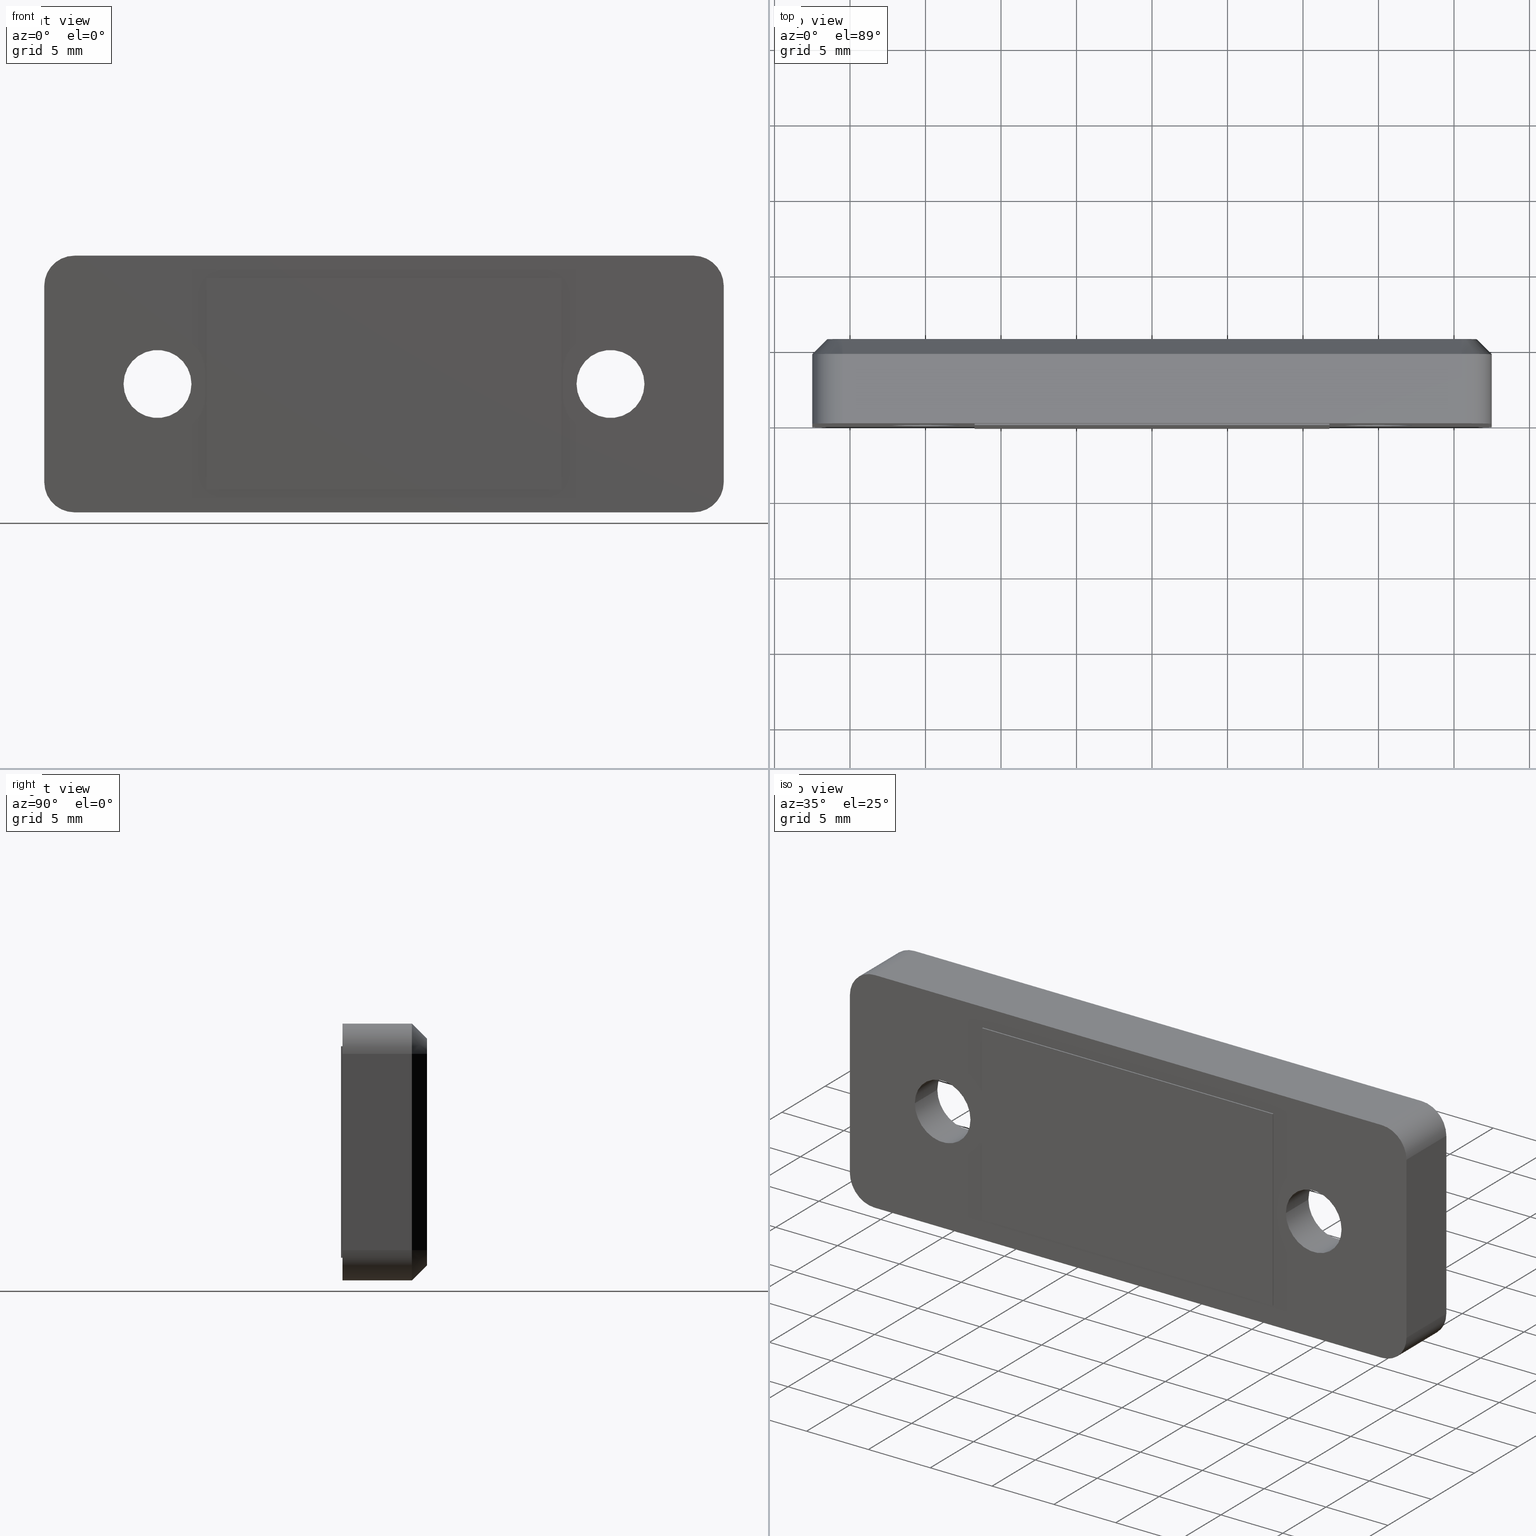
[diagram: canonical four-view strip — front | top / right | iso, engineering-drawing reading convention]
A machine part, canonical four-view strip (front | top / right | iso — engineering-drawing reading convention). The complete STEP part file that produces these views, byte-faithful:
ISO-10303-21;
HEADER;
/* Generated by software containing ST-Developer
 * from STEP Tools, Inc. (www.steptools.com) 
 */

FILE_DESCRIPTION(
/* description */ (''),
/* implementation_level */ '2;1');

FILE_NAME(
/* name */ '\\\\SYNOLOGYNAS\\web\\db2\\B-MP30\\\X2\B3C4BA74\X0\\\B-MP3
0.stp',
/* time_stamp */ '2024-09-25T18:44:56+09:00',
/* author */ ('user'),
/* organization */ (''),
/* preprocessor_version */ 'ST-DEVELOPER v15.6',
/* originating_system */ 'Autodesk Inventor 2015',
/* authorisation */ '');

FILE_SCHEMA (('AUTOMOTIVE_DESIGN { 1 0 10303 214 3 1 1 }'));
ENDSEC;

DATA;
#10=MECHANICAL_DESIGN_GEOMETRIC_PRESENTATION_REPRESENTATION('',(#16),#840);
#11=DIMENSIONAL_EXPONENTS(0.,0.,0.,0.,0.,0.,0.);
#12=(
CONVERSION_BASED_UNIT('degree',#13)
NAMED_UNIT(#11)
PLANE_ANGLE_UNIT()
);
#13=PLANE_ANGLE_MEASURE_WITH_UNIT(PLANE_ANGLE_MEASURE(0.01745329252),#843);
#14=SHAPE_REPRESENTATION_RELATIONSHIP('SRR','None',#846,#15);
#15=ADVANCED_BREP_SHAPE_REPRESENTATION($,(#17),#839);
#16=STYLED_ITEM('',(#856),#17);
#17=MANIFOLD_SOLID_BREP('\X2\BCF8CCB4\X0\1',#498);
#18=CYLINDRICAL_SURFACE('',#525,2.);
#19=CYLINDRICAL_SURFACE('',#528,2.);
#20=CYLINDRICAL_SURFACE('',#531,2.);
#21=CYLINDRICAL_SURFACE('',#534,2.);
#22=CYLINDRICAL_SURFACE('',#539,2.25);
#23=CYLINDRICAL_SURFACE('',#546,4.8);
#24=CYLINDRICAL_SURFACE('',#549,4.8);
#25=CYLINDRICAL_SURFACE('',#552,2.25);
#26=CONICAL_SURFACE('',#512,1.499999999779,0.785398163397448);
#27=CONICAL_SURFACE('',#515,1.499999999779,0.785398163397448);
#28=CONICAL_SURFACE('',#518,1.499999999779,0.785398163397448);
#29=CONICAL_SURFACE('',#521,1.499999999779,0.785398163397448);
#30=CONICAL_SURFACE('',#548,4.899999999123,0.785398163397448);
#31=CONICAL_SURFACE('',#551,4.899999999123,0.785398163397448);
#32=FACE_BOUND('',#104,.T.);
#33=FACE_BOUND('',#105,.T.);
#34=FACE_BOUND('',#123,.T.);
#35=FACE_BOUND('',#124,.T.);
#36=FACE_BOUND('',#125,.T.);
#37=FACE_BOUND('',#127,.T.);
#38=FACE_BOUND('',#129,.T.);
#39=FACE_BOUND('',#131,.T.);
#40=FACE_BOUND('',#133,.T.);
#41=FACE_BOUND('',#135,.T.);
#42=FACE_BOUND('',#137,.T.);
#43=FACE_BOUND('',#139,.T.);
#44=FACE_BOUND('',#141,.T.);
#45=CIRCLE('',#506,1.);
#46=CIRCLE('',#507,1.);
#47=CIRCLE('',#508,1.);
#48=CIRCLE('',#509,1.);
#49=CIRCLE('',#510,5.);
#50=CIRCLE('',#511,5.);
#51=CIRCLE('',#513,2.);
#52=CIRCLE('',#516,2.);
#53=CIRCLE('',#519,2.);
#54=CIRCLE('',#522,2.);
#55=CIRCLE('',#526,2.);
#56=CIRCLE('',#529,2.);
#57=CIRCLE('',#532,2.);
#58=CIRCLE('',#535,2.);
#59=CIRCLE('',#537,2.25);
#60=CIRCLE('',#538,2.25);
#61=CIRCLE('',#540,2.25);
#62=CIRCLE('',#542,4.8);
#63=CIRCLE('',#544,4.8);
#64=CIRCLE('',#545,2.25);
#65=CIRCLE('',#547,4.8);
#66=CIRCLE('',#550,4.8);
#67=FACE_OUTER_BOUND('',#98,.T.);
#68=FACE_OUTER_BOUND('',#99,.T.);
#69=FACE_OUTER_BOUND('',#100,.T.);
#70=FACE_OUTER_BOUND('',#101,.T.);
#71=FACE_OUTER_BOUND('',#102,.T.);
#72=FACE_OUTER_BOUND('',#103,.T.);
#73=FACE_OUTER_BOUND('',#106,.T.);
#74=FACE_OUTER_BOUND('',#107,.T.);
#75=FACE_OUTER_BOUND('',#108,.T.);
#76=FACE_OUTER_BOUND('',#109,.T.);
#77=FACE_OUTER_BOUND('',#110,.T.);
#78=FACE_OUTER_BOUND('',#111,.T.);
#79=FACE_OUTER_BOUND('',#112,.T.);
#80=FACE_OUTER_BOUND('',#113,.T.);
#81=FACE_OUTER_BOUND('',#114,.T.);
#82=FACE_OUTER_BOUND('',#115,.T.);
#83=FACE_OUTER_BOUND('',#116,.T.);
#84=FACE_OUTER_BOUND('',#117,.T.);
#85=FACE_OUTER_BOUND('',#118,.T.);
#86=FACE_OUTER_BOUND('',#119,.T.);
#87=FACE_OUTER_BOUND('',#120,.T.);
#88=FACE_OUTER_BOUND('',#121,.T.);
#89=FACE_OUTER_BOUND('',#122,.T.);
#90=FACE_OUTER_BOUND('',#126,.T.);
#91=FACE_OUTER_BOUND('',#128,.T.);
#92=FACE_OUTER_BOUND('',#130,.T.);
#93=FACE_OUTER_BOUND('',#132,.T.);
#94=FACE_OUTER_BOUND('',#134,.T.);
#95=FACE_OUTER_BOUND('',#136,.T.);
#96=FACE_OUTER_BOUND('',#138,.T.);
#97=FACE_OUTER_BOUND('',#140,.T.);
#98=EDGE_LOOP('',(#326,#327,#328,#329));
#99=EDGE_LOOP('',(#330,#331,#332,#333));
#100=EDGE_LOOP('',(#334,#335,#336,#337));
#101=EDGE_LOOP('',(#338,#339,#340,#341));
#102=EDGE_LOOP('',(#342,#343,#344,#345));
#103=EDGE_LOOP('',(#346,#347,#348,#349,#350,#351,#352,#353));
#104=EDGE_LOOP('',(#354));
#105=EDGE_LOOP('',(#355));
#106=EDGE_LOOP('',(#356,#357,#358,#359));
#107=EDGE_LOOP('',(#360,#361,#362,#363));
#108=EDGE_LOOP('',(#364,#365,#366,#367));
#109=EDGE_LOOP('',(#368,#369,#370,#371));
#110=EDGE_LOOP('',(#372,#373,#374,#375));
#111=EDGE_LOOP('',(#376,#377,#378,#379));
#112=EDGE_LOOP('',(#380,#381,#382,#383));
#113=EDGE_LOOP('',(#384,#385,#386,#387));
#114=EDGE_LOOP('',(#388,#389,#390,#391));
#115=EDGE_LOOP('',(#392,#393,#394,#395));
#116=EDGE_LOOP('',(#396,#397,#398,#399));
#117=EDGE_LOOP('',(#400,#401,#402,#403));
#118=EDGE_LOOP('',(#404,#405,#406,#407));
#119=EDGE_LOOP('',(#408,#409,#410,#411));
#120=EDGE_LOOP('',(#412,#413,#414,#415));
#121=EDGE_LOOP('',(#416,#417,#418,#419));
#122=EDGE_LOOP('',(#420,#421,#422,#423,#424,#425,#426,#427));
#123=EDGE_LOOP('',(#428,#429,#430,#431));
#124=EDGE_LOOP('',(#432));
#125=EDGE_LOOP('',(#433));
#126=EDGE_LOOP('',(#434));
#127=EDGE_LOOP('',(#435));
#128=EDGE_LOOP('',(#436));
#129=EDGE_LOOP('',(#437));
#130=EDGE_LOOP('',(#438));
#131=EDGE_LOOP('',(#439));
#132=EDGE_LOOP('',(#440));
#133=EDGE_LOOP('',(#441));
#134=EDGE_LOOP('',(#442));
#135=EDGE_LOOP('',(#443));
#136=EDGE_LOOP('',(#444));
#137=EDGE_LOOP('',(#445));
#138=EDGE_LOOP('',(#446));
#139=EDGE_LOOP('',(#447));
#140=EDGE_LOOP('',(#448));
#141=EDGE_LOOP('',(#449));
#142=LINE('',#705,#182);
#143=LINE('',#707,#183);
#144=LINE('',#709,#184);
#145=LINE('',#710,#185);
#146=LINE('',#713,#186);
#147=LINE('',#715,#187);
#148=LINE('',#716,#188);
#149=LINE('',#719,#189);
#150=LINE('',#721,#190);
#151=LINE('',#722,#191);
#152=LINE('',#724,#192);
#153=LINE('',#725,#193);
#154=LINE('',#732,#194);
#155=LINE('',#736,#195);
#156=LINE('',#740,#196);
#157=LINE('',#743,#197);
#158=LINE('',#750,#198);
#159=LINE('',#753,#199);
#160=LINE('',#756,#200);
#161=LINE('',#757,#201);
#162=LINE('',#761,#202);
#163=LINE('',#764,#203);
#164=LINE('',#765,#204);
#165=LINE('',#769,#205);
#166=LINE('',#772,#206);
#167=LINE('',#773,#207);
#168=LINE('',#777,#208);
#169=LINE('',#779,#209);
#170=LINE('',#782,#210);
#171=LINE('',#784,#211);
#172=LINE('',#785,#212);
#173=LINE('',#789,#213);
#174=LINE('',#792,#214);
#175=LINE('',#793,#215);
#176=LINE('',#797,#216);
#177=LINE('',#800,#217);
#178=LINE('',#801,#218);
#179=LINE('',#805,#219);
#180=LINE('',#808,#220);
#181=LINE('',#809,#221);
#182=VECTOR('',#557,14.);
#183=VECTOR('',#558,0.1);
#184=VECTOR('',#559,14.);
#185=VECTOR('',#560,0.1);
#186=VECTOR('',#563,23.5);
#187=VECTOR('',#564,23.5);
#188=VECTOR('',#565,0.1);
#189=VECTOR('',#568,14.);
#190=VECTOR('',#569,14.);
#191=VECTOR('',#570,0.1);
#192=VECTOR('',#573,23.5);
#193=VECTOR('',#574,23.5);
#194=VECTOR('',#581,12.9999999952556);
#195=VECTOR('',#584,40.9999999952545);
#196=VECTOR('',#587,12.9999999952556);
#197=VECTOR('',#590,40.999999996333);
#198=VECTOR('',#597,1.41421356230816);
#199=VECTOR('',#600,1.41421356229436);
#200=VECTOR('',#603,12.9999999923037);
#201=VECTOR('',#604,1.41421356227622);
#202=VECTOR('',#609,1.41421356229437);
#203=VECTOR('',#612,40.9999999923029);
#204=VECTOR('',#613,1.41421356227834);
#205=VECTOR('',#618,1.41421356229436);
#206=VECTOR('',#621,12.9999999923036);
#207=VECTOR('',#622,1.41421356227622);
#208=VECTOR('',#627,1.41421356229437);
#209=VECTOR('',#630,40.9999999929853);
#210=VECTOR('',#633,4.60000000011092);
#211=VECTOR('',#634,41.);
#212=VECTOR('',#635,4.60000000009511);
#213=VECTOR('',#640,4.60000000011114);
#214=VECTOR('',#643,13.);
#215=VECTOR('',#644,4.6000000002);
#216=VECTOR('',#649,4.60000000011092);
#217=VECTOR('',#652,41.);
#218=VECTOR('',#653,4.6000000002);
#219=VECTOR('',#658,4.60000000011114);
#220=VECTOR('',#661,13.);
#221=VECTOR('',#662,4.6000000002);
#222=VERTEX_POINT('',#703);
#223=VERTEX_POINT('',#704);
#224=VERTEX_POINT('',#706);
#225=VERTEX_POINT('',#708);
#226=VERTEX_POINT('',#712);
#227=VERTEX_POINT('',#714);
#228=VERTEX_POINT('',#718);
#229=VERTEX_POINT('',#720);
#230=VERTEX_POINT('',#728);
#231=VERTEX_POINT('',#729);
#232=VERTEX_POINT('',#731);
#233=VERTEX_POINT('',#733);
#234=VERTEX_POINT('',#735);
#235=VERTEX_POINT('',#737);
#236=VERTEX_POINT('',#739);
#237=VERTEX_POINT('',#741);
#238=VERTEX_POINT('',#744);
#239=VERTEX_POINT('',#746);
#240=VERTEX_POINT('',#749);
#241=VERTEX_POINT('',#751);
#242=VERTEX_POINT('',#755);
#243=VERTEX_POINT('',#759);
#244=VERTEX_POINT('',#763);
#245=VERTEX_POINT('',#767);
#246=VERTEX_POINT('',#771);
#247=VERTEX_POINT('',#775);
#248=VERTEX_POINT('',#781);
#249=VERTEX_POINT('',#783);
#250=VERTEX_POINT('',#787);
#251=VERTEX_POINT('',#791);
#252=VERTEX_POINT('',#795);
#253=VERTEX_POINT('',#799);
#254=VERTEX_POINT('',#803);
#255=VERTEX_POINT('',#807);
#256=VERTEX_POINT('',#813);
#257=VERTEX_POINT('',#815);
#258=VERTEX_POINT('',#818);
#259=VERTEX_POINT('',#821);
#260=VERTEX_POINT('',#824);
#261=VERTEX_POINT('',#826);
#262=VERTEX_POINT('',#829);
#263=VERTEX_POINT('',#833);
#264=EDGE_CURVE('',#222,#223,#142,.T.);
#265=EDGE_CURVE('',#222,#224,#143,.T.);
#266=EDGE_CURVE('',#225,#224,#144,.T.);
#267=EDGE_CURVE('',#223,#225,#145,.T.);
#268=EDGE_CURVE('',#223,#226,#146,.T.);
#269=EDGE_CURVE('',#227,#225,#147,.T.);
#270=EDGE_CURVE('',#226,#227,#148,.T.);
#271=EDGE_CURVE('',#226,#228,#149,.T.);
#272=EDGE_CURVE('',#229,#227,#150,.T.);
#273=EDGE_CURVE('',#228,#229,#151,.T.);
#274=EDGE_CURVE('',#228,#222,#152,.T.);
#275=EDGE_CURVE('',#224,#229,#153,.T.);
#276=EDGE_CURVE('',#230,#231,#45,.T.);
#277=EDGE_CURVE('',#231,#232,#154,.T.);
#278=EDGE_CURVE('',#232,#233,#46,.T.);
#279=EDGE_CURVE('',#233,#234,#155,.T.);
#280=EDGE_CURVE('',#234,#235,#47,.T.);
#281=EDGE_CURVE('',#235,#236,#156,.T.);
#282=EDGE_CURVE('',#236,#237,#48,.T.);
#283=EDGE_CURVE('',#237,#230,#157,.T.);
#284=EDGE_CURVE('',#238,#238,#49,.T.);
#285=EDGE_CURVE('',#239,#239,#50,.T.);
#286=EDGE_CURVE('',#230,#240,#158,.T.);
#287=EDGE_CURVE('',#240,#241,#51,.T.);
#288=EDGE_CURVE('',#231,#241,#159,.T.);
#289=EDGE_CURVE('',#241,#242,#160,.T.);
#290=EDGE_CURVE('',#232,#242,#161,.T.);
#291=EDGE_CURVE('',#242,#243,#52,.T.);
#292=EDGE_CURVE('',#233,#243,#162,.T.);
#293=EDGE_CURVE('',#243,#244,#163,.T.);
#294=EDGE_CURVE('',#234,#244,#164,.T.);
#295=EDGE_CURVE('',#244,#245,#53,.T.);
#296=EDGE_CURVE('',#235,#245,#165,.T.);
#297=EDGE_CURVE('',#245,#246,#166,.T.);
#298=EDGE_CURVE('',#236,#246,#167,.T.);
#299=EDGE_CURVE('',#246,#247,#54,.T.);
#300=EDGE_CURVE('',#237,#247,#168,.T.);
#301=EDGE_CURVE('',#247,#240,#169,.T.);
#302=EDGE_CURVE('',#248,#247,#170,.T.);
#303=EDGE_CURVE('',#249,#248,#171,.T.);
#304=EDGE_CURVE('',#249,#240,#172,.T.);
#305=EDGE_CURVE('',#250,#249,#55,.T.);
#306=EDGE_CURVE('',#250,#241,#173,.T.);
#307=EDGE_CURVE('',#251,#250,#174,.T.);
#308=EDGE_CURVE('',#251,#242,#175,.T.);
#309=EDGE_CURVE('',#252,#251,#56,.T.);
#310=EDGE_CURVE('',#252,#243,#176,.T.);
#311=EDGE_CURVE('',#253,#252,#177,.T.);
#312=EDGE_CURVE('',#253,#244,#178,.T.);
#313=EDGE_CURVE('',#254,#253,#57,.T.);
#314=EDGE_CURVE('',#254,#245,#179,.T.);
#315=EDGE_CURVE('',#255,#254,#180,.T.);
#316=EDGE_CURVE('',#255,#246,#181,.T.);
#317=EDGE_CURVE('',#248,#255,#58,.T.);
#318=EDGE_CURVE('',#256,#256,#59,.T.);
#319=EDGE_CURVE('',#257,#257,#60,.T.);
#320=EDGE_CURVE('',#258,#258,#61,.T.);
#321=EDGE_CURVE('',#259,#259,#62,.T.);
#322=EDGE_CURVE('',#260,#260,#63,.T.);
#323=EDGE_CURVE('',#261,#261,#64,.T.);
#324=EDGE_CURVE('',#262,#262,#65,.T.);
#325=EDGE_CURVE('',#263,#263,#66,.T.);
#326=ORIENTED_EDGE('',*,*,#264,.F.);
#327=ORIENTED_EDGE('',*,*,#265,.T.);
#328=ORIENTED_EDGE('',*,*,#266,.F.);
#329=ORIENTED_EDGE('',*,*,#267,.F.);
#330=ORIENTED_EDGE('',*,*,#268,.F.);
#331=ORIENTED_EDGE('',*,*,#267,.T.);
#332=ORIENTED_EDGE('',*,*,#269,.F.);
#333=ORIENTED_EDGE('',*,*,#270,.F.);
#334=ORIENTED_EDGE('',*,*,#271,.F.);
#335=ORIENTED_EDGE('',*,*,#270,.T.);
#336=ORIENTED_EDGE('',*,*,#272,.F.);
#337=ORIENTED_EDGE('',*,*,#273,.F.);
#338=ORIENTED_EDGE('',*,*,#274,.F.);
#339=ORIENTED_EDGE('',*,*,#273,.T.);
#340=ORIENTED_EDGE('',*,*,#275,.F.);
#341=ORIENTED_EDGE('',*,*,#265,.F.);
#342=ORIENTED_EDGE('',*,*,#275,.T.);
#343=ORIENTED_EDGE('',*,*,#272,.T.);
#344=ORIENTED_EDGE('',*,*,#269,.T.);
#345=ORIENTED_EDGE('',*,*,#266,.T.);
#346=ORIENTED_EDGE('',*,*,#276,.T.);
#347=ORIENTED_EDGE('',*,*,#277,.T.);
#348=ORIENTED_EDGE('',*,*,#278,.T.);
#349=ORIENTED_EDGE('',*,*,#279,.T.);
#350=ORIENTED_EDGE('',*,*,#280,.T.);
#351=ORIENTED_EDGE('',*,*,#281,.T.);
#352=ORIENTED_EDGE('',*,*,#282,.T.);
#353=ORIENTED_EDGE('',*,*,#283,.T.);
#354=ORIENTED_EDGE('',*,*,#284,.T.);
#355=ORIENTED_EDGE('',*,*,#285,.T.);
#356=ORIENTED_EDGE('',*,*,#276,.F.);
#357=ORIENTED_EDGE('',*,*,#286,.T.);
#358=ORIENTED_EDGE('',*,*,#287,.T.);
#359=ORIENTED_EDGE('',*,*,#288,.F.);
#360=ORIENTED_EDGE('',*,*,#277,.F.);
#361=ORIENTED_EDGE('',*,*,#288,.T.);
#362=ORIENTED_EDGE('',*,*,#289,.T.);
#363=ORIENTED_EDGE('',*,*,#290,.F.);
#364=ORIENTED_EDGE('',*,*,#278,.F.);
#365=ORIENTED_EDGE('',*,*,#290,.T.);
#366=ORIENTED_EDGE('',*,*,#291,.T.);
#367=ORIENTED_EDGE('',*,*,#292,.F.);
#368=ORIENTED_EDGE('',*,*,#279,.F.);
#369=ORIENTED_EDGE('',*,*,#292,.T.);
#370=ORIENTED_EDGE('',*,*,#293,.T.);
#371=ORIENTED_EDGE('',*,*,#294,.F.);
#372=ORIENTED_EDGE('',*,*,#280,.F.);
#373=ORIENTED_EDGE('',*,*,#294,.T.);
#374=ORIENTED_EDGE('',*,*,#295,.T.);
#375=ORIENTED_EDGE('',*,*,#296,.F.);
#376=ORIENTED_EDGE('',*,*,#281,.F.);
#377=ORIENTED_EDGE('',*,*,#296,.T.);
#378=ORIENTED_EDGE('',*,*,#297,.T.);
#379=ORIENTED_EDGE('',*,*,#298,.F.);
#380=ORIENTED_EDGE('',*,*,#282,.F.);
#381=ORIENTED_EDGE('',*,*,#298,.T.);
#382=ORIENTED_EDGE('',*,*,#299,.T.);
#383=ORIENTED_EDGE('',*,*,#300,.F.);
#384=ORIENTED_EDGE('',*,*,#283,.F.);
#385=ORIENTED_EDGE('',*,*,#300,.T.);
#386=ORIENTED_EDGE('',*,*,#301,.T.);
#387=ORIENTED_EDGE('',*,*,#286,.F.);
#388=ORIENTED_EDGE('',*,*,#301,.F.);
#389=ORIENTED_EDGE('',*,*,#302,.F.);
#390=ORIENTED_EDGE('',*,*,#303,.F.);
#391=ORIENTED_EDGE('',*,*,#304,.T.);
#392=ORIENTED_EDGE('',*,*,#287,.F.);
#393=ORIENTED_EDGE('',*,*,#304,.F.);
#394=ORIENTED_EDGE('',*,*,#305,.F.);
#395=ORIENTED_EDGE('',*,*,#306,.T.);
#396=ORIENTED_EDGE('',*,*,#289,.F.);
#397=ORIENTED_EDGE('',*,*,#306,.F.);
#398=ORIENTED_EDGE('',*,*,#307,.F.);
#399=ORIENTED_EDGE('',*,*,#308,.T.);
#400=ORIENTED_EDGE('',*,*,#291,.F.);
#401=ORIENTED_EDGE('',*,*,#308,.F.);
#402=ORIENTED_EDGE('',*,*,#309,.F.);
#403=ORIENTED_EDGE('',*,*,#310,.T.);
#404=ORIENTED_EDGE('',*,*,#293,.F.);
#405=ORIENTED_EDGE('',*,*,#310,.F.);
#406=ORIENTED_EDGE('',*,*,#311,.F.);
#407=ORIENTED_EDGE('',*,*,#312,.T.);
#408=ORIENTED_EDGE('',*,*,#295,.F.);
#409=ORIENTED_EDGE('',*,*,#312,.F.);
#410=ORIENTED_EDGE('',*,*,#313,.F.);
#411=ORIENTED_EDGE('',*,*,#314,.T.);
#412=ORIENTED_EDGE('',*,*,#297,.F.);
#413=ORIENTED_EDGE('',*,*,#314,.F.);
#414=ORIENTED_EDGE('',*,*,#315,.F.);
#415=ORIENTED_EDGE('',*,*,#316,.T.);
#416=ORIENTED_EDGE('',*,*,#299,.F.);
#417=ORIENTED_EDGE('',*,*,#316,.F.);
#418=ORIENTED_EDGE('',*,*,#317,.F.);
#419=ORIENTED_EDGE('',*,*,#302,.T.);
#420=ORIENTED_EDGE('',*,*,#317,.T.);
#421=ORIENTED_EDGE('',*,*,#315,.T.);
#422=ORIENTED_EDGE('',*,*,#313,.T.);
#423=ORIENTED_EDGE('',*,*,#311,.T.);
#424=ORIENTED_EDGE('',*,*,#309,.T.);
#425=ORIENTED_EDGE('',*,*,#307,.T.);
#426=ORIENTED_EDGE('',*,*,#305,.T.);
#427=ORIENTED_EDGE('',*,*,#303,.T.);
#428=ORIENTED_EDGE('',*,*,#264,.T.);
#429=ORIENTED_EDGE('',*,*,#268,.T.);
#430=ORIENTED_EDGE('',*,*,#271,.T.);
#431=ORIENTED_EDGE('',*,*,#274,.T.);
#432=ORIENTED_EDGE('',*,*,#318,.T.);
#433=ORIENTED_EDGE('',*,*,#319,.T.);
#434=ORIENTED_EDGE('',*,*,#320,.T.);
#435=ORIENTED_EDGE('',*,*,#318,.F.);
#436=ORIENTED_EDGE('',*,*,#321,.T.);
#437=ORIENTED_EDGE('',*,*,#320,.F.);
#438=ORIENTED_EDGE('',*,*,#322,.T.);
#439=ORIENTED_EDGE('',*,*,#323,.F.);
#440=ORIENTED_EDGE('',*,*,#324,.F.);
#441=ORIENTED_EDGE('',*,*,#321,.F.);
#442=ORIENTED_EDGE('',*,*,#284,.F.);
#443=ORIENTED_EDGE('',*,*,#324,.T.);
#444=ORIENTED_EDGE('',*,*,#325,.F.);
#445=ORIENTED_EDGE('',*,*,#322,.F.);
#446=ORIENTED_EDGE('',*,*,#285,.F.);
#447=ORIENTED_EDGE('',*,*,#325,.T.);
#448=ORIENTED_EDGE('',*,*,#323,.T.);
#449=ORIENTED_EDGE('',*,*,#319,.F.);
#450=PLANE('',#500);
#451=PLANE('',#501);
#452=PLANE('',#502);
#453=PLANE('',#503);
#454=PLANE('',#504);
#455=PLANE('',#505);
#456=PLANE('',#514);
#457=PLANE('',#517);
#458=PLANE('',#520);
#459=PLANE('',#523);
#460=PLANE('',#524);
#461=PLANE('',#527);
#462=PLANE('',#530);
#463=PLANE('',#533);
#464=PLANE('',#536);
#465=PLANE('',#541);
#466=PLANE('',#543);
#467=ADVANCED_FACE('',(#67),#450,.T.);
#468=ADVANCED_FACE('',(#68),#451,.T.);
#469=ADVANCED_FACE('',(#69),#452,.T.);
#470=ADVANCED_FACE('',(#70),#453,.T.);
#471=ADVANCED_FACE('',(#71),#454,.T.);
#472=ADVANCED_FACE('',(#72,#32,#33),#455,.F.);
#473=ADVANCED_FACE('',(#73),#26,.T.);
#474=ADVANCED_FACE('',(#74),#456,.T.);
#475=ADVANCED_FACE('',(#75),#27,.T.);
#476=ADVANCED_FACE('',(#76),#457,.T.);
#477=ADVANCED_FACE('',(#77),#28,.T.);
#478=ADVANCED_FACE('',(#78),#458,.T.);
#479=ADVANCED_FACE('',(#79),#29,.T.);
#480=ADVANCED_FACE('',(#80),#459,.T.);
#481=ADVANCED_FACE('',(#81),#460,.T.);
#482=ADVANCED_FACE('',(#82),#18,.T.);
#483=ADVANCED_FACE('',(#83),#461,.T.);
#484=ADVANCED_FACE('',(#84),#19,.T.);
#485=ADVANCED_FACE('',(#85),#462,.T.);
#486=ADVANCED_FACE('',(#86),#20,.T.);
#487=ADVANCED_FACE('',(#87),#463,.T.);
#488=ADVANCED_FACE('',(#88),#21,.T.);
#489=ADVANCED_FACE('',(#89,#34,#35,#36),#464,.T.);
#490=ADVANCED_FACE('',(#90,#37),#22,.F.);
#491=ADVANCED_FACE('',(#91,#38),#465,.T.);
#492=ADVANCED_FACE('',(#92,#39),#466,.T.);
#493=ADVANCED_FACE('',(#93,#40),#23,.F.);
#494=ADVANCED_FACE('',(#94,#41),#30,.F.);
#495=ADVANCED_FACE('',(#95,#42),#24,.F.);
#496=ADVANCED_FACE('',(#96,#43),#31,.F.);
#497=ADVANCED_FACE('',(#97,#44),#25,.F.);
#498=CLOSED_SHELL('',(#467,#468,#469,#470,#471,#472,#473,#474,#475,#476,
#477,#478,#479,#480,#481,#482,#483,#484,#485,#486,#487,#488,#489,#490,#491,
#492,#493,#494,#495,#496,#497));
#499=AXIS2_PLACEMENT_3D('placement',#701,#553,#554);
#500=AXIS2_PLACEMENT_3D('',#702,#555,#556);
#501=AXIS2_PLACEMENT_3D('',#711,#561,#562);
#502=AXIS2_PLACEMENT_3D('',#717,#566,#567);
#503=AXIS2_PLACEMENT_3D('',#723,#571,#572);
#504=AXIS2_PLACEMENT_3D('',#726,#575,#576);
#505=AXIS2_PLACEMENT_3D('',#727,#577,#578);
#506=AXIS2_PLACEMENT_3D('',#730,#579,#580);
#507=AXIS2_PLACEMENT_3D('',#734,#582,#583);
#508=AXIS2_PLACEMENT_3D('',#738,#585,#586);
#509=AXIS2_PLACEMENT_3D('',#742,#588,#589);
#510=AXIS2_PLACEMENT_3D('',#745,#591,#592);
#511=AXIS2_PLACEMENT_3D('',#747,#593,#594);
#512=AXIS2_PLACEMENT_3D('',#748,#595,#596);
#513=AXIS2_PLACEMENT_3D('',#752,#598,#599);
#514=AXIS2_PLACEMENT_3D('',#754,#601,#602);
#515=AXIS2_PLACEMENT_3D('',#758,#605,#606);
#516=AXIS2_PLACEMENT_3D('',#760,#607,#608);
#517=AXIS2_PLACEMENT_3D('',#762,#610,#611);
#518=AXIS2_PLACEMENT_3D('',#766,#614,#615);
#519=AXIS2_PLACEMENT_3D('',#768,#616,#617);
#520=AXIS2_PLACEMENT_3D('',#770,#619,#620);
#521=AXIS2_PLACEMENT_3D('',#774,#623,#624);
#522=AXIS2_PLACEMENT_3D('',#776,#625,#626);
#523=AXIS2_PLACEMENT_3D('',#778,#628,#629);
#524=AXIS2_PLACEMENT_3D('',#780,#631,#632);
#525=AXIS2_PLACEMENT_3D('',#786,#636,#637);
#526=AXIS2_PLACEMENT_3D('',#788,#638,#639);
#527=AXIS2_PLACEMENT_3D('',#790,#641,#642);
#528=AXIS2_PLACEMENT_3D('',#794,#645,#646);
#529=AXIS2_PLACEMENT_3D('',#796,#647,#648);
#530=AXIS2_PLACEMENT_3D('',#798,#650,#651);
#531=AXIS2_PLACEMENT_3D('',#802,#654,#655);
#532=AXIS2_PLACEMENT_3D('',#804,#656,#657);
#533=AXIS2_PLACEMENT_3D('',#806,#659,#660);
#534=AXIS2_PLACEMENT_3D('',#810,#663,#664);
#535=AXIS2_PLACEMENT_3D('',#811,#665,#666);
#536=AXIS2_PLACEMENT_3D('',#812,#667,#668);
#537=AXIS2_PLACEMENT_3D('',#814,#669,#670);
#538=AXIS2_PLACEMENT_3D('',#816,#671,#672);
#539=AXIS2_PLACEMENT_3D('',#817,#673,#674);
#540=AXIS2_PLACEMENT_3D('',#819,#675,#676);
#541=AXIS2_PLACEMENT_3D('',#820,#677,#678);
#542=AXIS2_PLACEMENT_3D('',#822,#679,#680);
#543=AXIS2_PLACEMENT_3D('',#823,#681,#682);
#544=AXIS2_PLACEMENT_3D('',#825,#683,#684);
#545=AXIS2_PLACEMENT_3D('',#827,#685,#686);
#546=AXIS2_PLACEMENT_3D('',#828,#687,#688);
#547=AXIS2_PLACEMENT_3D('',#830,#689,#690);
#548=AXIS2_PLACEMENT_3D('',#831,#691,#692);
#549=AXIS2_PLACEMENT_3D('',#832,#693,#694);
#550=AXIS2_PLACEMENT_3D('',#834,#695,#696);
#551=AXIS2_PLACEMENT_3D('',#835,#697,#698);
#552=AXIS2_PLACEMENT_3D('',#836,#699,#700);
#553=DIRECTION('axis',(0.,0.,1.));
#554=DIRECTION('refdir',(1.,0.,0.));
#555=DIRECTION('center_axis',(1.,0.,0.));
#556=DIRECTION('ref_axis',(0.,-1.22464679914735E-16,1.));
#557=DIRECTION('',(0.,1.22464679914735E-16,-1.));
#558=DIRECTION('',(0.,-1.,0.));
#559=DIRECTION('',(0.,-1.22464679914735E-16,1.));
#560=DIRECTION('',(0.,-1.,0.));
#561=DIRECTION('center_axis',(0.,0.,-1.));
#562=DIRECTION('ref_axis',(1.,0.,0.));
#563=DIRECTION('',(-1.,0.,0.));
#564=DIRECTION('',(1.,0.,0.));
#565=DIRECTION('',(0.,-1.,0.));
#566=DIRECTION('center_axis',(-1.,0.,0.));
#567=DIRECTION('ref_axis',(0.,1.22464679914735E-16,-1.));
#568=DIRECTION('',(0.,-1.22464679914735E-16,1.));
#569=DIRECTION('',(0.,1.22464679914735E-16,-1.));
#570=DIRECTION('',(0.,-1.,0.));
#571=DIRECTION('center_axis',(0.,0.,1.));
#572=DIRECTION('ref_axis',(-1.,0.,0.));
#573=DIRECTION('',(1.,0.,0.));
#574=DIRECTION('',(-1.,0.,0.));
#575=DIRECTION('center_axis',(0.,-1.,0.));
#576=DIRECTION('ref_axis',(0.,0.,-1.));
#577=DIRECTION('center_axis',(0.,-1.,-1.22464679914735E-16));
#578=DIRECTION('ref_axis',(1.,0.,0.));
#579=DIRECTION('center_axis',(0.,1.,1.22464679914735E-16));
#580=DIRECTION('ref_axis',(0.,-1.22464679914735E-16,1.));
#581=DIRECTION('',(3.76696964383E-12,-3.76664221489908E-12,-1.));
#582=DIRECTION('center_axis',(0.,1.,1.22464679914735E-16));
#583=DIRECTION('ref_axis',(1.,0.,0.));
#584=DIRECTION('',(-1.,-1.194307525669E-12,-1.194361682889E-12));
#585=DIRECTION('center_axis',(0.,1.,1.22464679914735E-16));
#586=DIRECTION('ref_axis',(0.,1.22464679914735E-16,-1.));
#587=DIRECTION('',(-3.76696964383E-12,-3.76688714425891E-12,1.));
#588=DIRECTION('center_axis',(0.,1.,1.22464679914735E-16));
#589=DIRECTION('ref_axis',(-1.,0.,0.));
#590=DIRECTION('',(1.,-1.194307525669E-12,1.194361682889E-12));
#591=DIRECTION('center_axis',(0.,-1.,-1.22464679914735E-16));
#592=DIRECTION('ref_axis',(1.,0.,0.));
#593=DIRECTION('center_axis',(0.,-1.,-1.22464679914735E-16));
#594=DIRECTION('ref_axis',(1.,0.,0.));
#595=DIRECTION('center_axis',(0.,-1.,-1.22464679914735E-16));
#596=DIRECTION('ref_axis',(0.,-1.22464679914735E-16,1.));
#597=DIRECTION('',(-1.28699348380309E-9,-0.707106781186548,0.707106781186547));
#598=DIRECTION('center_axis',(0.,1.,1.22464679914735E-16));
#599=DIRECTION('ref_axis',(0.,-1.22464679914735E-16,1.));
#600=DIRECTION('',(0.707106781186548,-0.707106781186548,-7.02795452460953E-10));
#601=DIRECTION('center_axis',(0.707106781186548,0.707106781186548,8.65956056235492E-17));
#602=DIRECTION('ref_axis',(0.707106781186547,-0.707106781186548,-8.65956056235495E-17));
#603=DIRECTION('',(5.6501811813E-12,-5.64999039520308E-12,-1.));
#604=DIRECTION('',(0.707106781186547,-0.707106781186547,1.28699339720748E-9));
#605=DIRECTION('center_axis',(0.,-1.,-1.22464679914735E-16));
#606=DIRECTION('ref_axis',(0.707106781769911,8.65956055521077E-17,-0.707106780603184));
#607=DIRECTION('center_axis',(0.,1.,1.22464679914735E-16));
#608=DIRECTION('ref_axis',(1.,0.,0.));
#609=DIRECTION('',(-7.02793481754447E-10,-0.707106781186547,-0.707106781186548));
#610=DIRECTION('center_axis',(0.,0.707106781186548,-0.707106781186547));
#611=DIRECTION('ref_axis',(0.,-0.707106781186547,-0.707106781186548));
#612=DIRECTION('',(-1.,-1.791482951514E-12,-1.791477535792E-12));
#613=DIRECTION('',(1.28699348380309E-9,-0.707106781186547,-0.707106781186548));
#614=DIRECTION('center_axis',(0.,-1.,-1.22464679914735E-16));
#615=DIRECTION('ref_axis',(0.,-1.22464679914735E-16,1.));
#616=DIRECTION('center_axis',(0.,1.,1.22464679914735E-16));
#617=DIRECTION('ref_axis',(0.,1.22464679914735E-16,-1.));
#618=DIRECTION('',(-0.707106781186548,-0.707106781186548,7.02795279269741E-10));
#619=DIRECTION('center_axis',(-0.707106781186548,0.707106781186548,8.65956056235492E-17));
#620=DIRECTION('ref_axis',(-0.707106781186547,-0.707106781186548,-8.65956056235495E-17));
#621=DIRECTION('',(-5.6501811813E-12,-5.65023532456291E-12,1.));
#622=DIRECTION('',(-0.707106781186547,-0.707106781186547,-1.28699357039869E-9));
#623=DIRECTION('center_axis',(0.,-1.,-1.22464679914735E-16));
#624=DIRECTION('ref_axis',(0.,-1.22464679914735E-16,1.));
#625=DIRECTION('center_axis',(0.,1.,1.22464679914735E-16));
#626=DIRECTION('ref_axis',(-1.,0.,0.));
#627=DIRECTION('',(7.02793481754447E-10,-0.707106781186548,0.707106781186547));
#628=DIRECTION('center_axis',(0.,0.707106781186547,0.707106781186548));
#629=DIRECTION('ref_axis',(0.,-0.707106781186548,0.707106781186548));
#630=DIRECTION('',(1.,-1.791482951514E-12,1.791477535792E-12));
#631=DIRECTION('center_axis',(0.,-1.22464679914735E-16,1.));
#632=DIRECTION('ref_axis',(-1.,0.,0.));
#633=DIRECTION('',(6.481980169621E-10,1.,-5.94298264165701E-11));
#634=DIRECTION('',(-1.,0.,0.));
#635=DIRECTION('',(-1.187011069096E-9,1.,-4.34623092546601E-11));
#636=DIRECTION('center_axis',(0.,1.,1.22464679914735E-16));
#637=DIRECTION('ref_axis',(0.,-1.22464679914735E-16,1.));
#638=DIRECTION('center_axis',(0.,-1.,-1.22464679914735E-16));
#639=DIRECTION('ref_axis',(1.,0.,0.));
#640=DIRECTION('',(-5.943072121032E-11,1.,-6.4819828066192E-10));
#641=DIRECTION('center_axis',(1.,0.,0.));
#642=DIRECTION('ref_axis',(0.,0.,1.));
#643=DIRECTION('',(0.,-1.22464679914735E-16,1.));
#644=DIRECTION('',(-4.346204555481E-11,1.,1.18701138464268E-9));
#645=DIRECTION('center_axis',(0.,1.,1.22464679914735E-16));
#646=DIRECTION('ref_axis',(1.,0.,0.));
#647=DIRECTION('center_axis',(0.,-1.,-1.22464679914735E-16));
#648=DIRECTION('ref_axis',(0.,1.22464679914735E-16,-1.));
#649=DIRECTION('',(-6.48197244633E-10,1.,5.94300713459299E-11));
#650=DIRECTION('center_axis',(0.,1.22464679914735E-16,-1.));
#651=DIRECTION('ref_axis',(1.,0.,0.));
#652=DIRECTION('',(1.,0.,0.));
#653=DIRECTION('',(1.187011069096E-9,1.,4.34625541840199E-11));
#654=DIRECTION('center_axis',(0.,1.,1.22464679914735E-16));
#655=DIRECTION('ref_axis',(0.,1.22464679914735E-16,-1.));
#656=DIRECTION('center_axis',(0.,-1.,-1.22464679914735E-16));
#657=DIRECTION('ref_axis',(-1.,0.,0.));
#658=DIRECTION('',(5.943072121032E-11,1.,6.4819852559128E-10));
#659=DIRECTION('center_axis',(-1.,0.,0.));
#660=DIRECTION('ref_axis',(0.,0.,-1.));
#661=DIRECTION('',(0.,1.22464679914735E-16,-1.));
#662=DIRECTION('',(4.346204555481E-11,1.,-1.18701113971332E-9));
#663=DIRECTION('center_axis',(0.,1.,1.22464679914735E-16));
#664=DIRECTION('ref_axis',(-1.,0.,0.));
#665=DIRECTION('center_axis',(0.,-1.,-1.22464679914735E-16));
#666=DIRECTION('ref_axis',(0.,-1.22464679914735E-16,1.));
#667=DIRECTION('center_axis',(0.,-1.,-1.22464679914735E-16));
#668=DIRECTION('ref_axis',(1.,0.,0.));
#669=DIRECTION('center_axis',(0.,1.,1.22464679914735E-16));
#670=DIRECTION('ref_axis',(1.,0.,0.));
#671=DIRECTION('center_axis',(0.,1.,1.22464679914735E-16));
#672=DIRECTION('ref_axis',(1.,0.,0.));
#673=DIRECTION('center_axis',(0.,1.,1.22464679914735E-16));
#674=DIRECTION('ref_axis',(1.,0.,0.));
#675=DIRECTION('center_axis',(0.,1.,1.22464679914735E-16));
#676=DIRECTION('ref_axis',(1.,0.,0.));
#677=DIRECTION('center_axis',(0.,1.,1.22464679914735E-16));
#678=DIRECTION('ref_axis',(1.,0.,0.));
#679=DIRECTION('center_axis',(0.,1.,1.22464679914735E-16));
#680=DIRECTION('ref_axis',(1.,0.,0.));
#681=DIRECTION('center_axis',(0.,1.,1.22464679914735E-16));
#682=DIRECTION('ref_axis',(1.,0.,0.));
#683=DIRECTION('center_axis',(0.,1.,1.22464679914735E-16));
#684=DIRECTION('ref_axis',(1.,0.,0.));
#685=DIRECTION('center_axis',(0.,1.,1.22464679914735E-16));
#686=DIRECTION('ref_axis',(1.,0.,0.));
#687=DIRECTION('center_axis',(0.,1.,1.22464679914735E-16));
#688=DIRECTION('ref_axis',(1.,0.,0.));
#689=DIRECTION('center_axis',(0.,-1.,-1.22464679914735E-16));
#690=DIRECTION('ref_axis',(-1.,0.,0.));
#691=DIRECTION('center_axis',(0.,1.,1.22464679914735E-16));
#692=DIRECTION('ref_axis',(0.,-1.22464679914735E-16,1.));
#693=DIRECTION('center_axis',(0.,1.,1.22464679914735E-16));
#694=DIRECTION('ref_axis',(1.,0.,0.));
#695=DIRECTION('center_axis',(0.,-1.,-1.22464679914735E-16));
#696=DIRECTION('ref_axis',(-1.,0.,0.));
#697=DIRECTION('center_axis',(0.,1.,1.22464679914735E-16));
#698=DIRECTION('ref_axis',(0.,-1.22464679914735E-16,1.));
#699=DIRECTION('center_axis',(0.,1.,1.22464679914735E-16));
#700=DIRECTION('ref_axis',(1.,0.,0.));
#701=CARTESIAN_POINT('',(0.,0.,0.));
#702=CARTESIAN_POINT('Origin',(11.75,8.57252759403145E-16,-7.));
#703=CARTESIAN_POINT('',(11.75,-8.57252759403145E-16,7.));
#704=CARTESIAN_POINT('',(11.75,8.57252759403145E-16,-7.));
#705=CARTESIAN_POINT('',(11.75,4.28626379701573E-16,-3.5));
#706=CARTESIAN_POINT('',(11.75,-0.100000000000001,7.));
#707=CARTESIAN_POINT('',(11.75,-8.57252759403145E-16,7.));
#708=CARTESIAN_POINT('',(11.75,-0.0999999999999991,-7.));
#709=CARTESIAN_POINT('',(11.75,-0.100000000000001,7.));
#710=CARTESIAN_POINT('',(11.75,8.57252759403145E-16,-7.));
#711=CARTESIAN_POINT('Origin',(-11.75,8.57252759403145E-16,-7.));
#712=CARTESIAN_POINT('',(-11.75,8.57252759403145E-16,-7.));
#713=CARTESIAN_POINT('',(-5.875,8.57252759403145E-16,-7.));
#714=CARTESIAN_POINT('',(-11.75,-0.0999999999999991,-7.));
#715=CARTESIAN_POINT('',(11.75,-0.0999999999999992,-7.));
#716=CARTESIAN_POINT('',(-11.75,8.57252759403145E-16,-7.));
#717=CARTESIAN_POINT('Origin',(-11.75,-8.57252759403145E-16,7.));
#718=CARTESIAN_POINT('',(-11.75,-8.57252759403145E-16,7.));
#719=CARTESIAN_POINT('',(-11.75,-4.28626379701572E-16,3.5));
#720=CARTESIAN_POINT('',(-11.75,-0.100000000000001,7.));
#721=CARTESIAN_POINT('',(-11.75,-0.0999999999999992,-7.));
#722=CARTESIAN_POINT('',(-11.75,-8.57252759403145E-16,7.));
#723=CARTESIAN_POINT('Origin',(11.75,-8.57252759403145E-16,7.));
#724=CARTESIAN_POINT('',(5.875,-8.57252759403145E-16,7.));
#725=CARTESIAN_POINT('',(-11.75,-0.100000000000001,7.));
#726=CARTESIAN_POINT('Origin',(2.22044604925031E-15,-0.100000000000001,
0.));
#727=CARTESIAN_POINT('Origin',(0.,5.6,2.22044604925031E-15));
#728=CARTESIAN_POINT('',(20.4999999974385,5.60000000006405,7.49999999993595));
#729=CARTESIAN_POINT('',(21.4999999999202,5.60000000008112,6.49999999889556));
#730=CARTESIAN_POINT('Origin',(20.5,5.6,6.5));
#731=CARTESIAN_POINT('',(21.49999999987,5.600000000133,-6.49999999636));
#732=CARTESIAN_POINT('',(21.49999999982,5.600000000182,6.499999998012));
#733=CARTESIAN_POINT('',(20.4999999988945,5.60000000008089,-7.49999999991911));
#734=CARTESIAN_POINT('Origin',(20.5,5.6,-6.5));
#735=CARTESIAN_POINT('',(-20.49999999636,5.600000000133,-7.499999999867));
#736=CARTESIAN_POINT('',(20.49999999801,5.600000000182,-7.499999999818));
#737=CARTESIAN_POINT('',(-21.4999999999202,5.60000000008112,-6.49999999889555));
#738=CARTESIAN_POINT('Origin',(-20.5,5.6,-6.5));
#739=CARTESIAN_POINT('',(-21.49999999987,5.600000000133,6.49999999636));
#740=CARTESIAN_POINT('',(-21.49999999982,5.600000000182,-6.499999998012));
#741=CARTESIAN_POINT('',(-20.4999999988945,5.60000000008089,7.49999999991911));
#742=CARTESIAN_POINT('Origin',(-20.5,5.6,6.5));
#743=CARTESIAN_POINT('',(-20.49999999801,5.600000000182,7.499999999818));
#744=CARTESIAN_POINT('',(-15.,5.60000000000001,-5.00000000000001));
#745=CARTESIAN_POINT('Origin',(-15.,5.6,1.77635683940025E-14));
#746=CARTESIAN_POINT('',(15.,5.60000000000001,-5.00000000000001));
#747=CARTESIAN_POINT('Origin',(15.,5.6,2.22044604925031E-14));
#748=CARTESIAN_POINT('Origin',(20.5,5.100000000221,6.5));
#749=CARTESIAN_POINT('',(20.4999999952224,4.60000000009511,8.49999999987517));
#750=CARTESIAN_POINT('',(20.49999999636,5.600000000133,7.499999999867));
#751=CARTESIAN_POINT('',(22.4999999998389,4.60000000011114,6.49999999776365));
#752=CARTESIAN_POINT('Origin',(20.5,4.6,6.5));
#753=CARTESIAN_POINT('',(21.49999999982,5.600000000182,6.499999998012));
#754=CARTESIAN_POINT('Origin',(22.,5.1,2.22044604925031E-15));
#755=CARTESIAN_POINT('',(22.4999999998,4.6000000002,-6.49999999454));
#756=CARTESIAN_POINT('',(22.49999999973,4.600000000273,6.499999997018));
#757=CARTESIAN_POINT('',(21.49999999987,5.600000000133,-6.49999999636));
#758=CARTESIAN_POINT('Origin',(20.5,5.100000000221,-6.5));
#759=CARTESIAN_POINT('',(20.4999999977629,4.60000000011092,-8.4999999998378));
#760=CARTESIAN_POINT('Origin',(20.5,4.6,-6.5));
#761=CARTESIAN_POINT('',(20.49999999801,5.600000000182,-7.499999999818));
#762=CARTESIAN_POINT('Origin',(0.,5.1,-8.));
#763=CARTESIAN_POINT('',(-20.49999999454,4.6000000002,-8.4999999998));
#764=CARTESIAN_POINT('',(20.49999999702,4.600000000273,-8.499999999727));
#765=CARTESIAN_POINT('',(-20.49999999636,5.600000000133,-7.499999999867));
#766=CARTESIAN_POINT('Origin',(-20.5,5.100000000221,-6.5));
#767=CARTESIAN_POINT('',(-22.4999999998389,4.60000000011114,-6.49999999776364));
#768=CARTESIAN_POINT('Origin',(-20.5,4.6,-6.5));
#769=CARTESIAN_POINT('',(-21.49999999982,5.600000000182,-6.499999998012));
#770=CARTESIAN_POINT('Origin',(-22.,5.1,2.22044604925031E-15));
#771=CARTESIAN_POINT('',(-22.4999999998,4.6000000002,6.49999999454));
#772=CARTESIAN_POINT('',(-22.49999999973,4.600000000273,-6.499999997018));
#773=CARTESIAN_POINT('',(-21.49999999987,5.600000000133,6.49999999636));
#774=CARTESIAN_POINT('Origin',(-20.5,5.100000000221,6.5));
#775=CARTESIAN_POINT('',(-20.4999999977629,4.60000000011092,8.4999999998378));
#776=CARTESIAN_POINT('Origin',(-20.5,4.6,6.5));
#777=CARTESIAN_POINT('',(-20.49999999801,5.600000000182,7.499999999818));
#778=CARTESIAN_POINT('Origin',(0.,5.1,8.));
#779=CARTESIAN_POINT('',(-20.49999999702,4.600000000273,8.499999999727));
#780=CARTESIAN_POINT('Origin',(22.5,5.6,8.5));
#781=CARTESIAN_POINT('',(-20.5,-2.22044604925031E-15,8.5));
#782=CARTESIAN_POINT('',(-20.5,-2.22044604925031E-15,8.5));
#783=CARTESIAN_POINT('',(20.5,-2.22044604925031E-15,8.5));
#784=CARTESIAN_POINT('',(20.5,-2.22044604925031E-15,8.5));
#785=CARTESIAN_POINT('',(20.5,-2.22044604925031E-15,8.5));
#786=CARTESIAN_POINT('Origin',(20.5,-7.30016,6.5));
#787=CARTESIAN_POINT('',(22.5,-1.11022302462516E-15,6.5));
#788=CARTESIAN_POINT('Origin',(20.5,-1.11022302462516E-15,6.5));
#789=CARTESIAN_POINT('',(22.5,-1.11022302462516E-15,6.5));
#790=CARTESIAN_POINT('Origin',(22.5,5.6,-8.5));
#791=CARTESIAN_POINT('',(22.5,0.,-6.5));
#792=CARTESIAN_POINT('',(22.5,0.,-6.5));
#793=CARTESIAN_POINT('',(22.5,0.,-6.5));
#794=CARTESIAN_POINT('Origin',(20.5,-7.30016,-6.5));
#795=CARTESIAN_POINT('',(20.5,0.,-8.5));
#796=CARTESIAN_POINT('Origin',(20.5,0.,-6.5));
#797=CARTESIAN_POINT('',(20.5,0.,-8.5));
#798=CARTESIAN_POINT('Origin',(-22.5,5.6,-8.5));
#799=CARTESIAN_POINT('',(-20.5,0.,-8.5));
#800=CARTESIAN_POINT('',(-20.5,0.,-8.5));
#801=CARTESIAN_POINT('',(-20.5,0.,-8.5));
#802=CARTESIAN_POINT('Origin',(-20.5,-7.30016,-6.5));
#803=CARTESIAN_POINT('',(-22.5,0.,-6.5));
#804=CARTESIAN_POINT('Origin',(-20.5,0.,-6.5));
#805=CARTESIAN_POINT('',(-22.5,0.,-6.5));
#806=CARTESIAN_POINT('Origin',(-22.5,5.6,8.5));
#807=CARTESIAN_POINT('',(-22.5,-1.11022302462516E-15,6.5));
#808=CARTESIAN_POINT('',(-22.5,-1.11022302462516E-15,6.5));
#809=CARTESIAN_POINT('',(-22.5,-1.11022302462516E-15,6.5));
#810=CARTESIAN_POINT('Origin',(-20.5,-7.30016,6.5));
#811=CARTESIAN_POINT('Origin',(-20.5,-1.11022302462516E-15,6.5));
#812=CARTESIAN_POINT('Origin',(0.,0.,2.22044604925031E-15));
#813=CARTESIAN_POINT('',(-17.25,0.,2.22044604925031E-15));
#814=CARTESIAN_POINT('Origin',(-15.,0.,2.22044604925031E-15));
#815=CARTESIAN_POINT('',(12.75,0.,2.22044604925031E-15));
#816=CARTESIAN_POINT('Origin',(15.,0.,2.22044604925031E-15));
#817=CARTESIAN_POINT('Origin',(-15.,2.6,2.22044604925031E-15));
#818=CARTESIAN_POINT('',(-17.25,2.6,2.22044604925031E-15));
#819=CARTESIAN_POINT('Origin',(-15.,2.6,2.22044604925031E-15));
#820=CARTESIAN_POINT('Origin',(0.,2.6,2.22044604925031E-15));
#821=CARTESIAN_POINT('',(-19.8,2.6,2.44088247309684E-15));
#822=CARTESIAN_POINT('Origin',(-15.,2.6,2.22044604925031E-15));
#823=CARTESIAN_POINT('Origin',(0.,2.6,2.22044604925031E-15));
#824=CARTESIAN_POINT('',(10.2,2.6,2.44088247309684E-15));
#825=CARTESIAN_POINT('Origin',(15.,2.6,2.22044604925031E-15));
#826=CARTESIAN_POINT('',(12.75,2.6,2.22044604925031E-15));
#827=CARTESIAN_POINT('Origin',(15.,2.6,2.22044604925031E-15));
#828=CARTESIAN_POINT('Origin',(-15.,5.6,2.22044604925031E-15));
#829=CARTESIAN_POINT('',(-15.,5.4,-4.8));
#830=CARTESIAN_POINT('Origin',(-15.,5.4,2.22044604925031E-15));
#831=CARTESIAN_POINT('Origin',(-15.,5.499999999123,2.22044604925031E-15));
#832=CARTESIAN_POINT('Origin',(15.,5.6,2.22044604925031E-15));
#833=CARTESIAN_POINT('',(15.,5.4,-4.8));
#834=CARTESIAN_POINT('Origin',(15.,5.4,2.22044604925031E-15));
#835=CARTESIAN_POINT('Origin',(15.,5.499999999123,2.22044604925031E-15));
#836=CARTESIAN_POINT('Origin',(15.,2.6,2.22044604925031E-15));
#837=UNCERTAINTY_MEASURE_WITH_UNIT(LENGTH_MEASURE(0.01),#841,
'DISTANCE_ACCURACY_VALUE',
'Maximum model space distance between geometric entities at asserted c
onnectivities');
#838=UNCERTAINTY_MEASURE_WITH_UNIT(LENGTH_MEASURE(1.E-6),#841,
'DISTANCE_ACCURACY_VALUE',
'Maximum model space distance between geometric entities at asserted c
onnectivities');
#839=(
GEOMETRIC_REPRESENTATION_CONTEXT(3)
GLOBAL_UNCERTAINTY_ASSIGNED_CONTEXT((#837))
GLOBAL_UNIT_ASSIGNED_CONTEXT((#841,#843,#842))
REPRESENTATION_CONTEXT('','3D')
);
#840=(
GEOMETRIC_REPRESENTATION_CONTEXT(3)
GLOBAL_UNCERTAINTY_ASSIGNED_CONTEXT((#838))
GLOBAL_UNIT_ASSIGNED_CONTEXT((#841,#12,#842))
REPRESENTATION_CONTEXT('','3D')
);
#841=(
LENGTH_UNIT()
NAMED_UNIT(*)
SI_UNIT(.MILLI.,.METRE.)
);
#842=(
NAMED_UNIT(*)
SI_UNIT($,.STERADIAN.)
SOLID_ANGLE_UNIT()
);
#843=(
NAMED_UNIT(*)
PLANE_ANGLE_UNIT()
SI_UNIT($,.RADIAN.)
);
#844=SHAPE_DEFINITION_REPRESENTATION(#845,#846);
#845=PRODUCT_DEFINITION_SHAPE('',$,#848);
#846=SHAPE_REPRESENTATION('',(#499),#839);
#847=PRODUCT_DEFINITION_CONTEXT('part definition',#852,'design');
#848=PRODUCT_DEFINITION('B-MP30','B-MP30',#849,#847);
#849=PRODUCT_DEFINITION_FORMATION('',$,#854);
#850=PRODUCT_RELATED_PRODUCT_CATEGORY('B-MP30','B-MP30',(#854));
#851=APPLICATION_PROTOCOL_DEFINITION('international standard',
'automotive_design',2009,#852);
#852=APPLICATION_CONTEXT(
'Core Data for Automotive Mechanical Design Process');
#853=PRODUCT_CONTEXT('part definition',#852,'mechanical');
#854=PRODUCT('B-MP30','B-MP30',$,(#853));
#855=PRESENTATION_STYLE_ASSIGNMENT((#857));
#856=PRESENTATION_STYLE_ASSIGNMENT((#858));
#857=SURFACE_STYLE_USAGE(.BOTH.,#859);
#858=SURFACE_STYLE_USAGE(.BOTH.,#860);
#859=SURFACE_SIDE_STYLE($,(#861));
#860=SURFACE_SIDE_STYLE($,(#862));
#861=SURFACE_STYLE_FILL_AREA(#863);
#862=SURFACE_STYLE_FILL_AREA(#864);
#863=FILL_AREA_STYLE($,(#865));
#864=FILL_AREA_STYLE($,(#866));
#865=FILL_AREA_STYLE_COLOUR($,#867);
#866=FILL_AREA_STYLE_COLOUR($,#868);
#867=COLOUR_RGB('',0.749019607843137,0.749019607843137,0.749019607843137);
#868=COLOUR_RGB('',1.,1.,1.);
ENDSEC;
END-ISO-10303-21;
